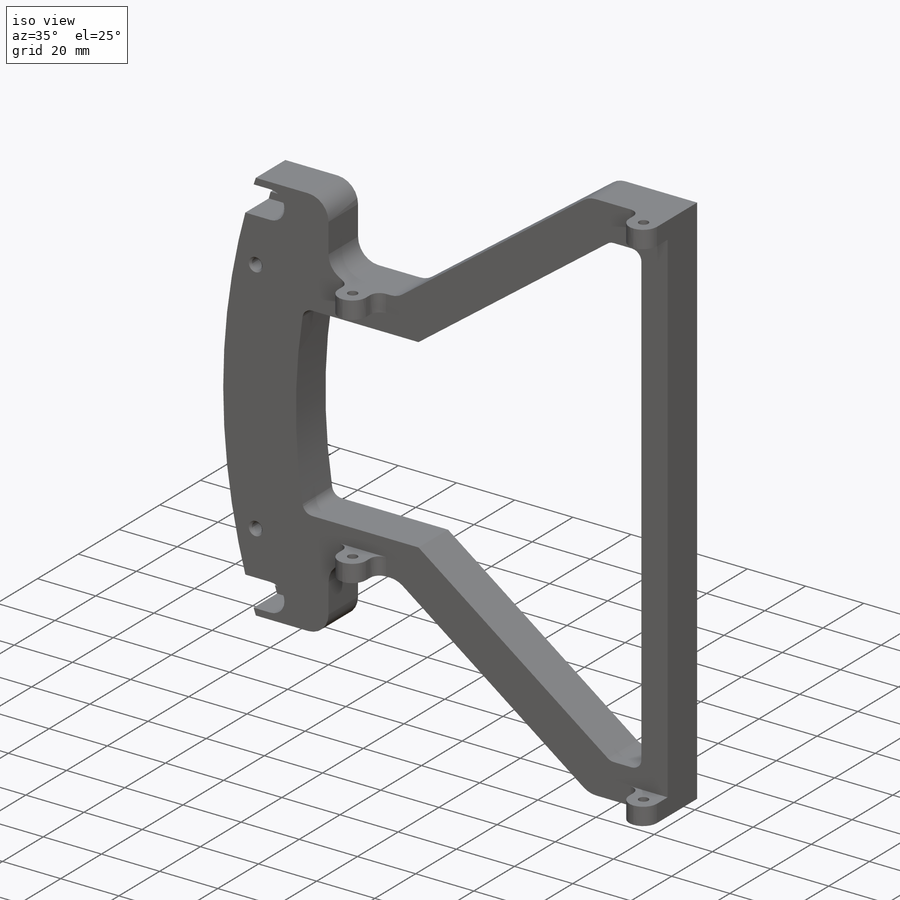
[diagram: iso view]
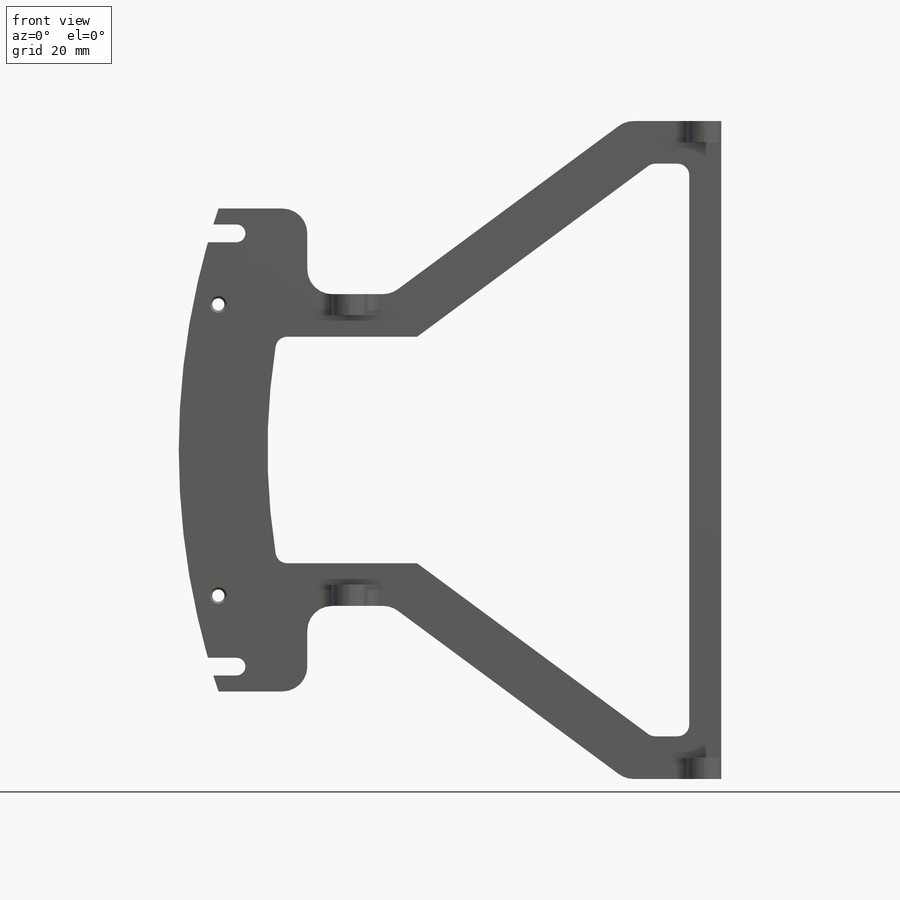
[diagram: front view]
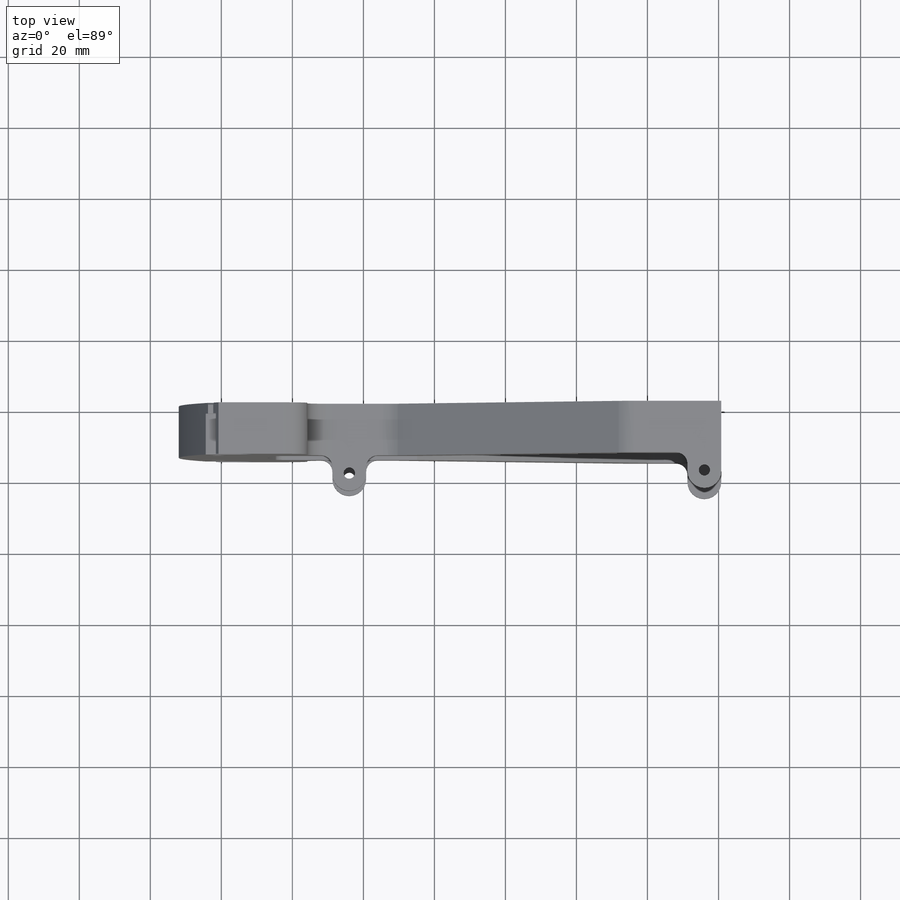
[diagram: top view]
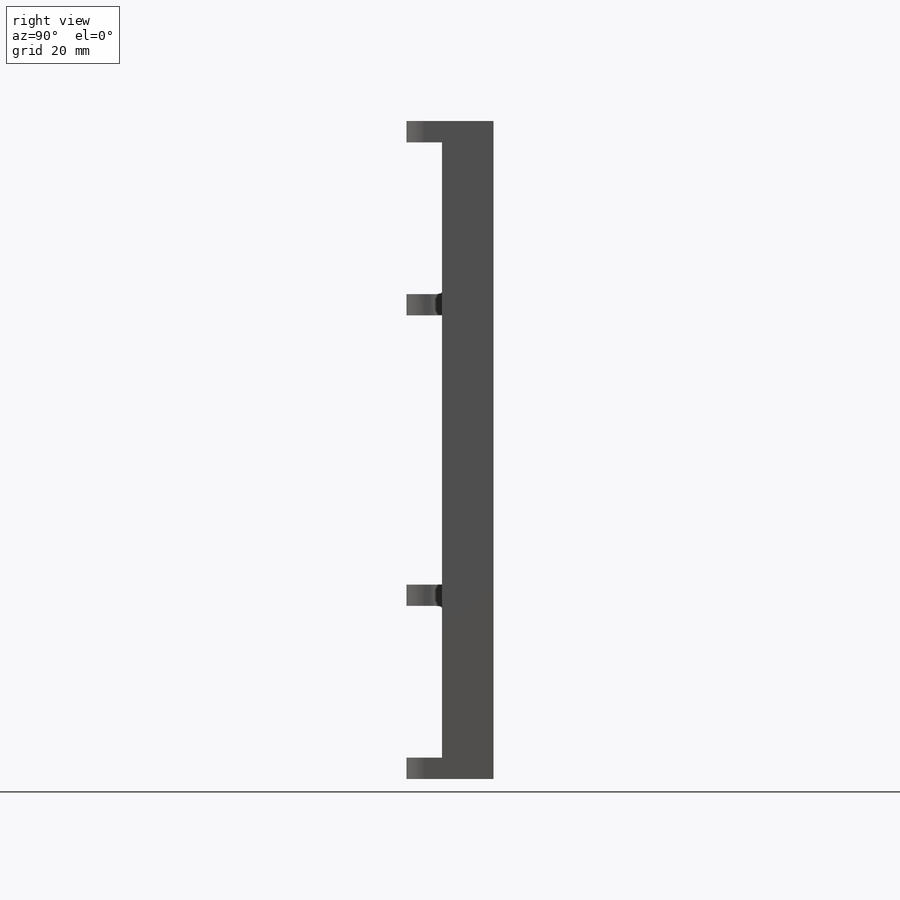
[diagram: right view]
SOLIDWORKS PART (.sldprt)
format: sldprt  version: not decoded by parser v0  size: 675,840 bytes
history: native  units: mm
features: sketch x13, cut_extrude x4, mirror x4, fillet x4, extrude x3, plane x2, hole x2, material x1, chamfer x1 (+11 scaffold rows collapsed)
feature tree (45):
  scaffold x11  (default folders/planes/origin — collapsed)
  material  "6061 Alloy"
  sketch  "Sketch1"  dims[c1.D1=424.0mm c1.D2=374.0mm c1.D8=12.0mm c1.D9=37.0mm c1.D3=81.0mm c1.D4=25.0mm c1.D5=39.7625mm c1.D6=~144.918572mm c1.D7=145.0mm c2.D6=145.0mm c2.D7=108.0mm c3.D6=~21.131403mm c3.D7=25.0mm c3.D8=17.0mm c3.D9=118.525mm c3.D10=40.0mm c3.D2=136.0mm c3.D3=87.8mm c3.D4=4.7625mm c3.D5=~63.989031mm c4.D6=100.0mm c4.D7=25.0mm c4.D8=~185.262806mm c4.D9=27.0mm c4.D11=25.0mm]
  extrude  "Boss-Extrude1"  Depth=14.5mm
  plane  "Plane1"  Offset=89.631403mm
  plane  "Plane2"  Offset=68.5mm
  sketch  "hole and nubben"  dims[D1=205.0mm D2=61.0mm D3=41.0mm]
  hole  "CBORE for #10 Socket Head Cap Screw1"  Diameter=4.9784mm Depth=14.501mm
  sketch  "3DSketch2"
  sketch  "Sketch7"  dims[hole-wizard template sketch: 42 standard entries collapsed; hole parameters kept: c12.Thru Hole Depth=14.501mm c12.C'Bore Dia.=9.525mm c12.C'Bore Depth=4.826mm]
  sketch  "Sketch10"
  cut_extrude  "Cut-Extrude1"  Depth=3mm
  sketch  "Sketch11"
  cut_extrude  "Cut-Extrude2"  [1 undecoded]
  chamfer  "Chamfer1"  Distance=0.5mm Angle=45deg
  mirror  "Mirror2"
  sketch  "Sketch22"  dims[D1=3.175mm]
  hole  "#29 (0.136) Diameter Hole1"  Diameter=3.4544mm Depth=14.5mm
  sketch  "3DSketch4"
  sketch  "Sketch23"  dims[hole-wizard template sketch: 47 standard entries collapsed; hole parameters kept: c15.Thru Hole Depth=14.5mm c15.Near C'Sink Dia.=4.7244mm c15.D4=~3.666174mm c15.Near C'Sink Angle=90.0deg c15.Far C'Sink Dia.=4.7244mm c15.D6=~9.919017mm c15.Far C'Sink Angle=90.0deg]
  mirror  "Mirror8"
  sketch  "Sketch24"  dims[D3=3.1877mm D1=10.0mm D2=9.525mm]
  extrude  "Boss-Extrude2"  Depth=6mm
  sketch  "Sketch25"
  extrude  "Boss-Extrude3"  Depth=6mm
  fillet  "Fillet1"  Radius=4.7625mm
  fillet  "Fillet2"  Radius=3.175mm
  mirror  "Mirror9"
  fillet  "Fillet3"  Radius=7mm
  sketch  "Sketch26"  dims[D1=76.2mm]
  cut_extrude  "Cut-Extrude3"  [1 undecoded]
  sketch  "Sketch27"  dims[D5=187.0mm D1=14.0mm D2=12.0mm D3=9.0mm D4=12.0mm]
  cut_extrude  "Cut-Extrude4"  [1 undecoded]
  mirror  "Mirror10"
  fillet  "Fillet4"  Radius=3.3mm
decode coverage: 19 of 31 modeling features carry decoded parameters
note: ~ marks probable driven/reference dimensions
note: 3 parameter values undecoded
summary: no parameter record found for 3 features
note: suppression state not decoded; provenance and decode notes live in map.json
